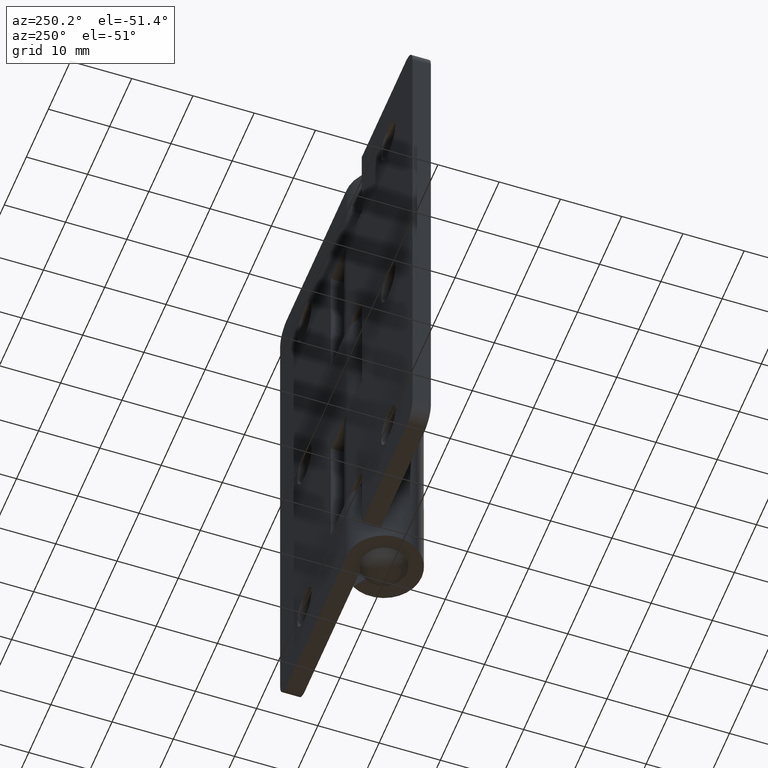
[diagram: clean part render]
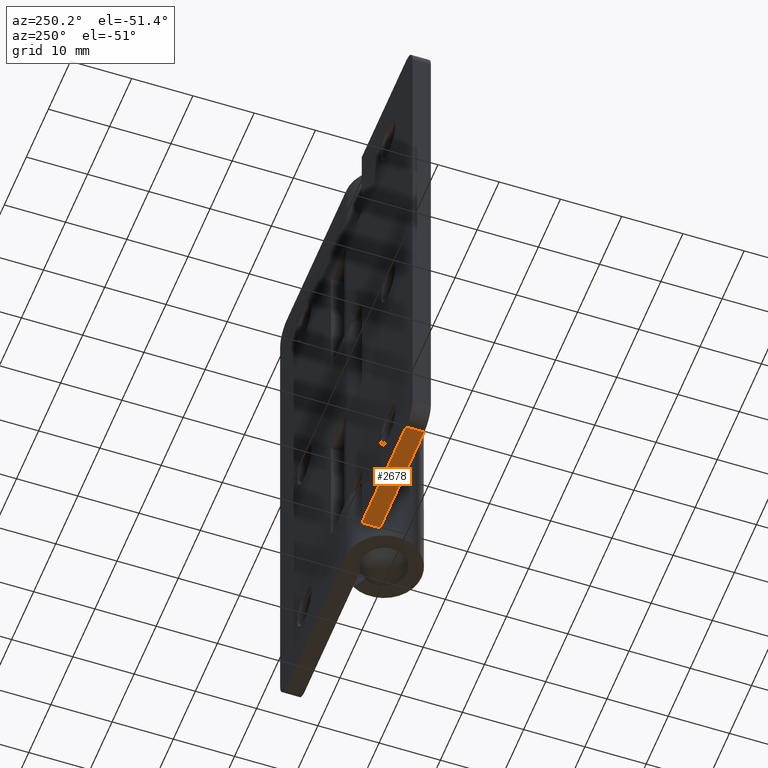
[diagram: same view with one face highlighted and labeled with its STEP entity id]
A machine part, auxiliary view. The second image highlights one B-rep face of the part: STEP entity #2678.
In plain terms, the highlighted face is a freeform B-spline surface patch.
Its self-contained STEP definition (entity closure, byte-faithful):
#2226=CARTESIAN_POINT('',(-27.0,3.150000000000000,0.0));
#2227=VERTEX_POINT('',#2226);
#2248=CARTESIAN_POINT('',(-27.0,6.150000000000000,0.0));
#2249=VERTEX_POINT('',#2248);
#2263=CARTESIAN_POINT('',(-27.0,3.150000000000000,0.0));
#2264=CARTESIAN_POINT('',(-27.0,6.150000000000000,0.0));
#2265=QUASI_UNIFORM_CURVE('',1,(#2263,#2264),.UNSPECIFIED.,.F.,.U.);
#2266=EDGE_CURVE('',#2227,#2249,#2265,.T.);
#2454=CARTESIAN_POINT('',(-7.000000000000100,3.150000000000000,0.0));
#2455=VERTEX_POINT('',#2454);
#2461=CARTESIAN_POINT('',(-7.000000000000100,6.150000000000000,0.0));
#2462=VERTEX_POINT('',#2461);
#2463=CARTESIAN_POINT('',(-7.000000000000100,3.150000000000000,0.0));
#2464=CARTESIAN_POINT('',(-7.000000000000100,6.150000000000000,0.0));
#2465=QUASI_UNIFORM_CURVE('',1,(#2463,#2464),.UNSPECIFIED.,.F.,.U.);
#2466=EDGE_CURVE('',#2455,#2462,#2465,.T.);
#2659=CARTESIAN_POINT('',(-27.998999961236120,3.000150090300142,0.0));
#2660=CARTESIAN_POINT('',(-6.000999502322183,3.000150090300142,0.0));
#2661=CARTESIAN_POINT('',(-27.998999961236120,6.299850070632400,0.0));
#2662=CARTESIAN_POINT('',(-6.000999502322183,6.299850070632400,0.0));
#2663=B_SPLINE_SURFACE_WITH_KNOTS('',1,1,((#2659,#2661),(#2660,#2662)),.UNSPECIFIED.,.F.,.F.,.U.,(2,2),(2,2),(0.0,21.998000458913928),(0.0,3.299699980332258),.UNSPECIFIED.);
#2664=CARTESIAN_POINT('',(-7.000000000000100,3.150000000000000,0.0));
#2665=CARTESIAN_POINT('',(-27.0,3.150000000000000,0.0));
#2666=QUASI_UNIFORM_CURVE('',1,(#2664,#2665),.UNSPECIFIED.,.F.,.U.);
#2667=EDGE_CURVE('',#2455,#2227,#2666,.T.);
#2668=ORIENTED_EDGE('',*,*,#2667,.T.);
#2669=ORIENTED_EDGE('',*,*,#2266,.T.);
#2670=CARTESIAN_POINT('',(-27.0,6.150000000000000,0.0));
#2671=CARTESIAN_POINT('',(-7.000000000000100,6.150000000000000,0.0));
#2672=QUASI_UNIFORM_CURVE('',1,(#2670,#2671),.UNSPECIFIED.,.F.,.U.);
#2673=EDGE_CURVE('',#2249,#2462,#2672,.T.);
#2674=ORIENTED_EDGE('',*,*,#2673,.T.);
#2675=ORIENTED_EDGE('',*,*,#2466,.F.);
#2676=EDGE_LOOP('',(#2668,#2669,#2674,#2675));
#2677=FACE_OUTER_BOUND('',#2676,.T.);
#2678=ADVANCED_FACE('',(#2677),#2663,.F.);